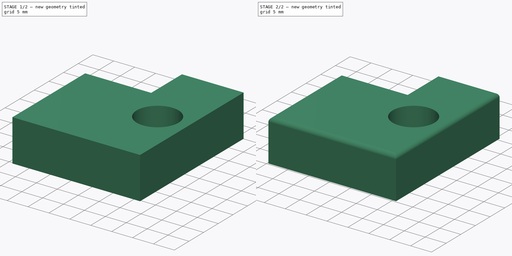
[diagram: build sequence overview — one tinted view per stage of 2, left to right]
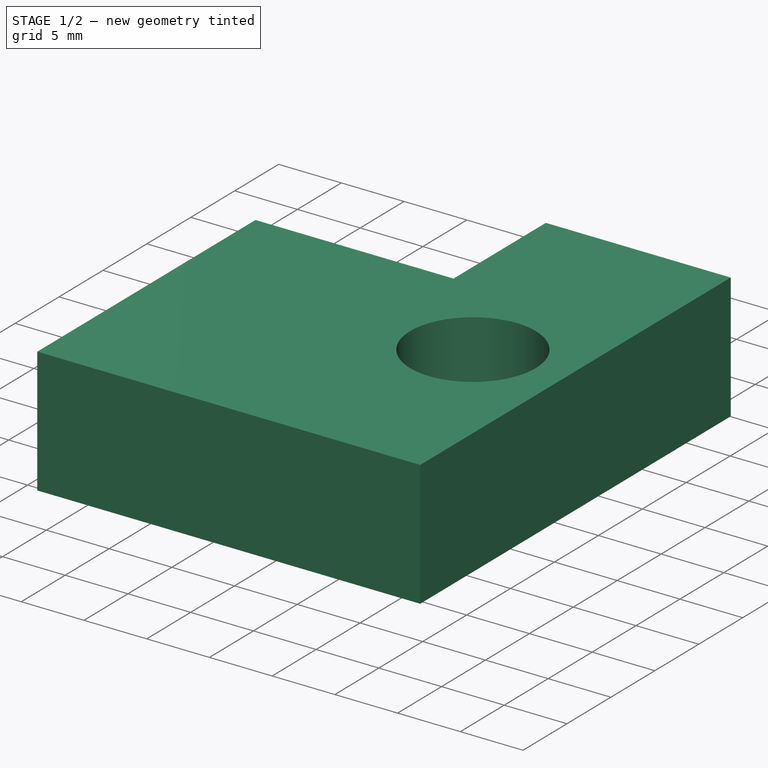
[diagram: stage 1 of 2 — iso view after this stage's code; geometry added in this stage tinted green]
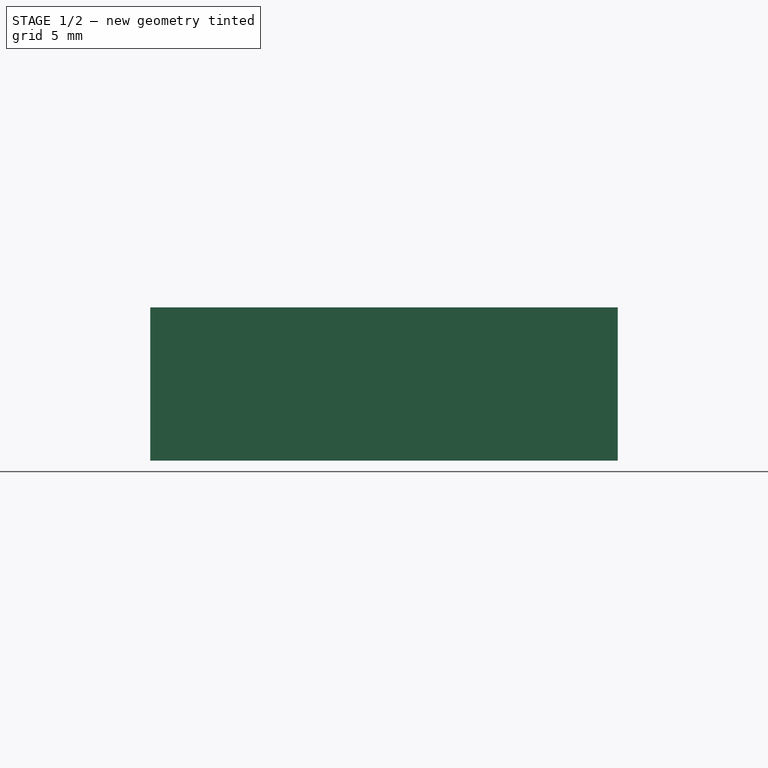
[diagram: stage 1 of 2 — front view after this stage's code; geometry added in this stage tinted green]
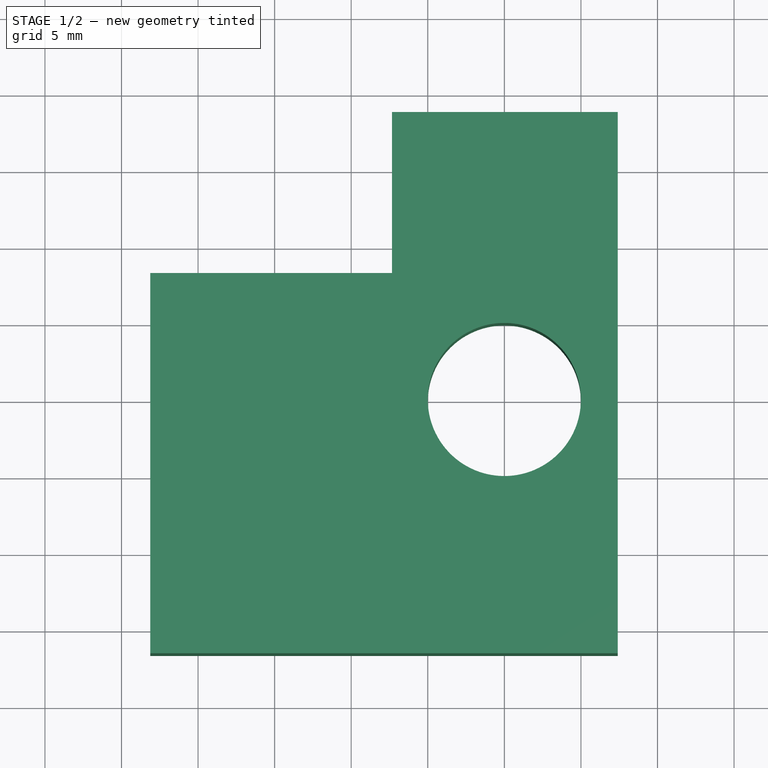
[diagram: stage 1 of 2 — top view after this stage's code; geometry added in this stage tinted green]
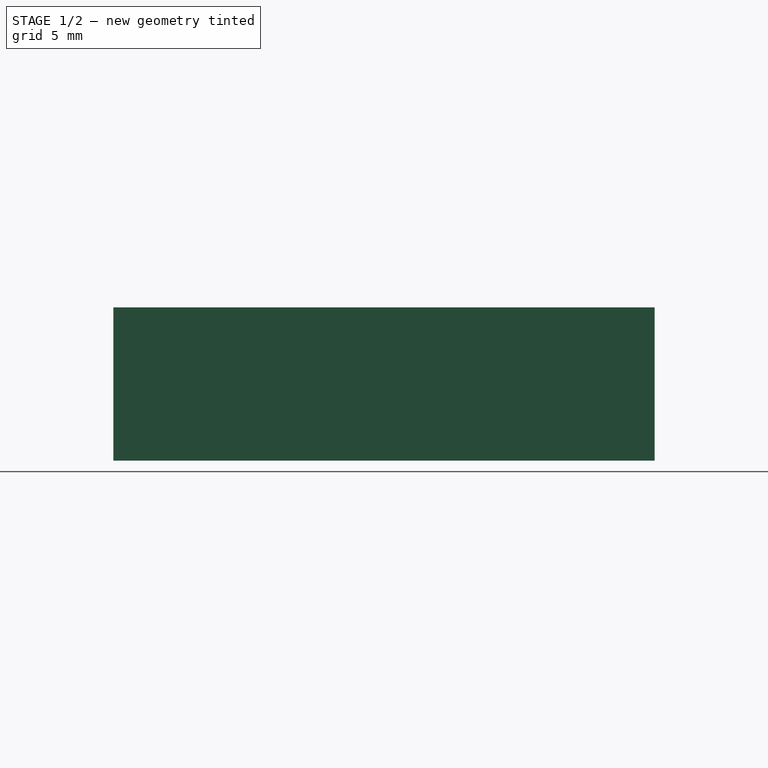
[diagram: stage 1 of 2 — right view after this stage's code; geometry added in this stage tinted green]
FCSTD DOCUMENT  (FreeCAD 0.15R4138 (Git))
Label: test
License: CC-BY 3.0
LicenseURL: http://creativecommons.org/licenses/by/3.0/
objects: Sketcher::SketchObject×2, PartDesign::Pad×1, PartDesign::Pocket×1, Part::FeaturePython×1, Part::Fillet×1
note: 8 computed .brp shape members not serialized (recipe doc carries the construction recipe); baked Part::Feature solids carry a one-line shape summary decoded from their .brp

FEATURE [Sketcher::SketchObject] Sketch
  sketch-geometry (6):
    g0: LineSegment StartX=-13.1192 StartY=-6.5772 StartZ=0 EndX=-13.1192 EndY=18.2606 EndZ=0
    g1: LineSegment StartX=-13.1192 StartY=18.2606 StartZ=0 EndX=2.66771 EndY=18.2606 EndZ=0
    g2: LineSegment StartX=2.66771 StartY=18.2606 StartZ=0 EndX=2.66771 EndY=28.7731 EndZ=0
    g3: LineSegment StartX=2.66771 StartY=28.7731 StartZ=0 EndX=17.4022 EndY=28.7731 EndZ=0
    g4: LineSegment StartX=17.4022 StartY=28.7731 StartZ=0 EndX=17.4022 EndY=-6.5772 EndZ=0
    g5: LineSegment StartX=17.4022 StartY=-6.5772 StartZ=0 EndX=-13.1192 EndY=-6.5772 EndZ=0
  constraints (16):
    c: Vertical(g0)
    c: Coincident(g0,g1)
    c: Horizontal(g1)
    c: Coincident(g1,g2)
    c: Coincident(g2,g3)
    c: Coincident(g3,g4)
    c: Vertical(g4)
    c: Coincident(g4,g5)
    c: Coincident(g5,g0)
    c: Horizontal(g5)
    c: Horizontal(g3)
    c: Vertical(g2)
    c: Distance(g5) = 30.5214
    c: Distance(g4) = 35.3503
    c: Distance(g3) = 14.7345
    c: Distance(g0) = 24.8378
FEATURE [PartDesign::Pad] Pad
  Length = 10
  Length2 = 100
  Sketch = -> Sketch
  Type = 0
FEATURE [Sketcher::SketchObject] Sketch001
  Placement = pos=(0,0,10) rot=(0,0,1;0rad)
  Support = -> Pad [Face8]
  sketch-geometry (1):
    g0: Circle CenterX=10 CenterY=10 CenterZ=0 NormalX=0 NormalY=0 NormalZ=1 Radius=5
  constraints (3):
    c: DistanceX(g-1,g0) = 10
    c: DistanceY(g-1,g0) = 10
    c: Radius(g0) = 5
FEATURE [PartDesign::Pocket] Pocket
  Length = 5
  Sketch = -> Sketch001
  Type = 1
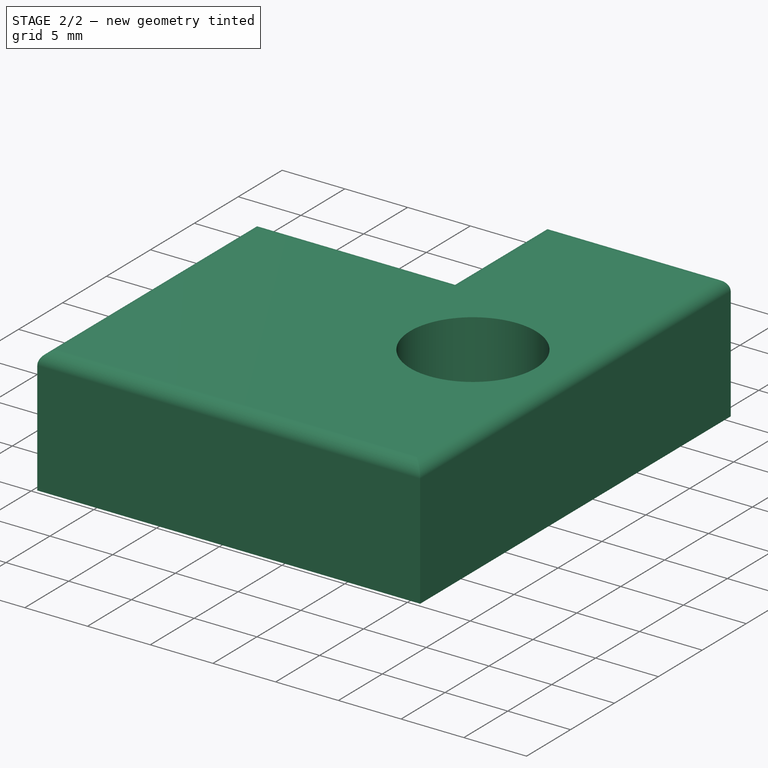
[diagram: stage 2 of 2 — iso view after this stage's code; geometry added in this stage tinted green]
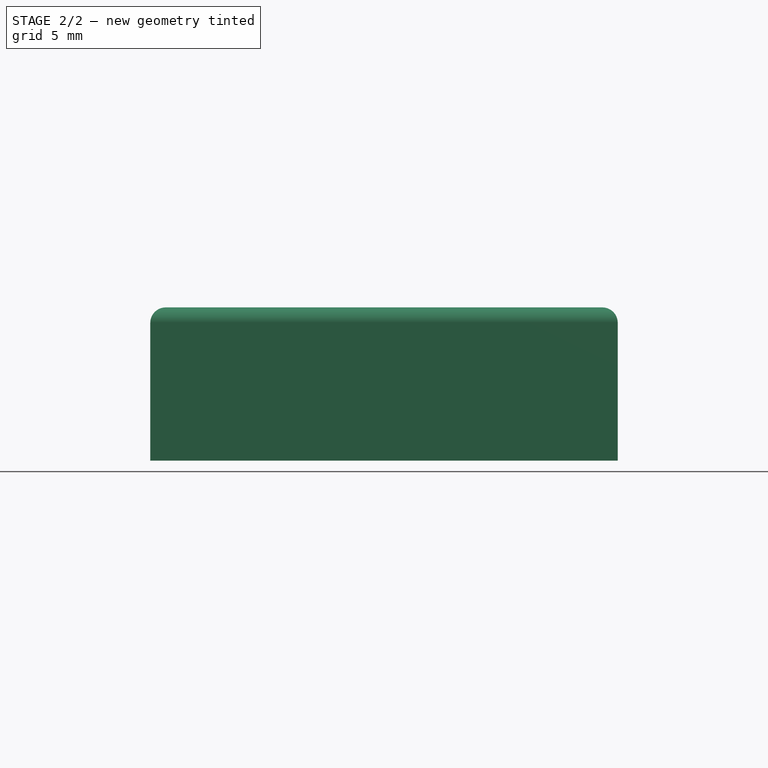
[diagram: stage 2 of 2 — front view after this stage's code; geometry added in this stage tinted green]
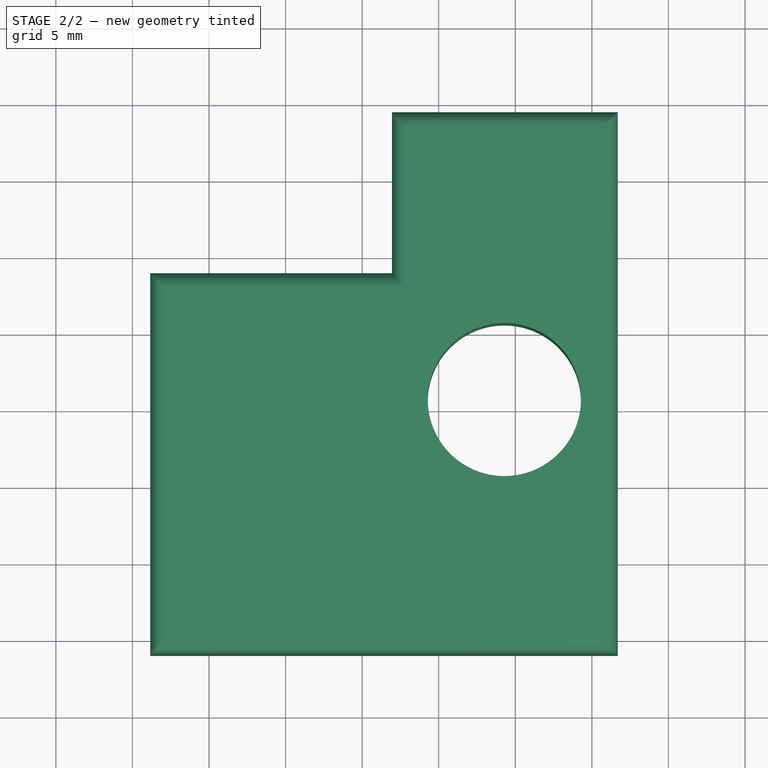
[diagram: stage 2 of 2 — top view after this stage's code; geometry added in this stage tinted green]
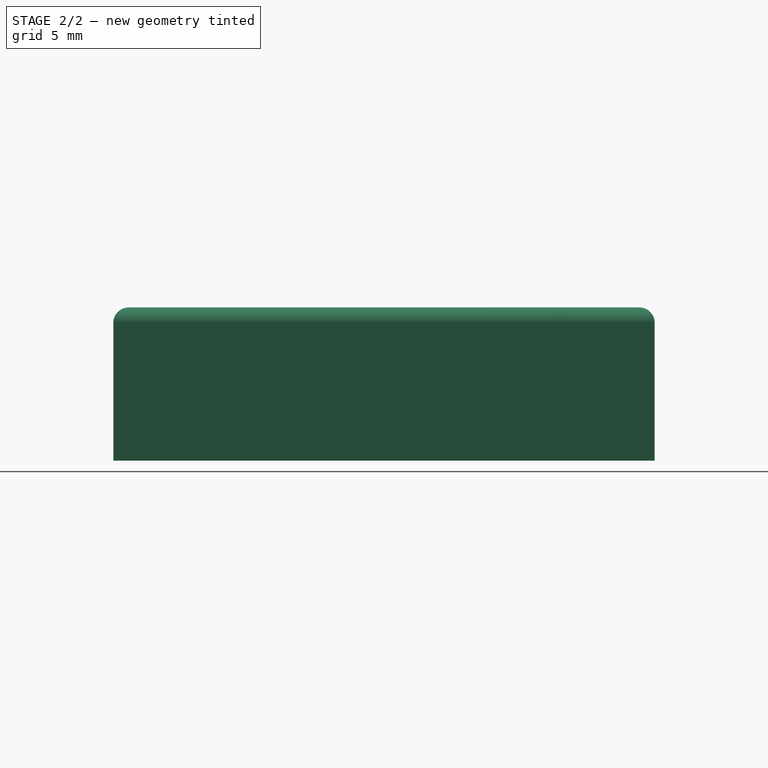
[diagram: stage 2 of 2 — right view after this stage's code; geometry added in this stage tinted green]
FEATURE [Part::FeaturePython] Clone  label="Clone of Pocket"  # Draft clone (typed FeaturePython)
  Objects = -> [Pocket]
  Placement = pos=(34.2861,0.619013,0) rot=(0,0,1;0rad)
  Scale = (1,1,1)
FEATURE [Part::Fillet] Fillet
  Base = -> Clone
  Edges = 6 edges r=1: [Edge4,Edge7,Edge10,Edge15,Edge16,Edge17]
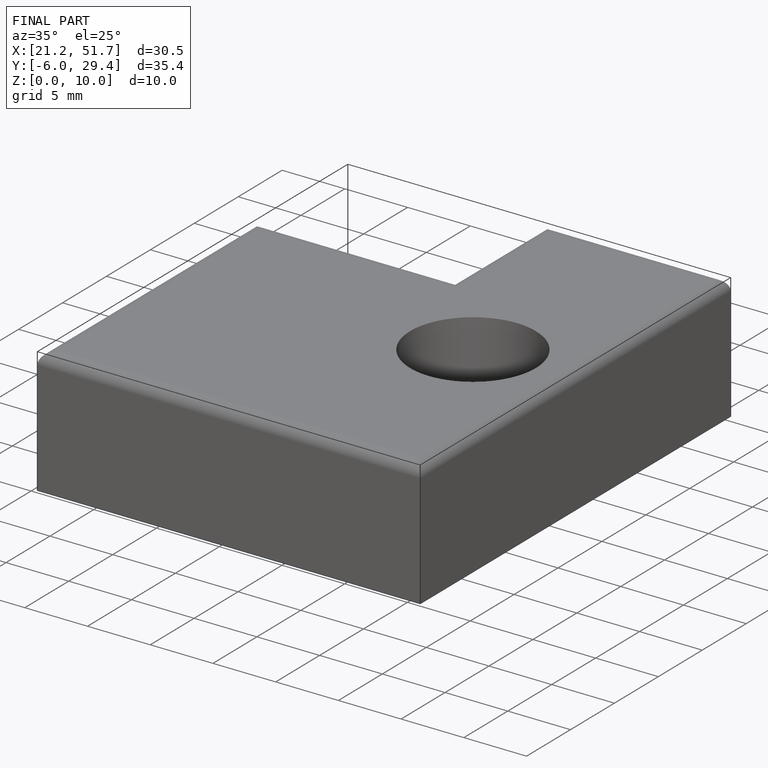
[diagram: finished part — iso view with bounding-box wireframe]
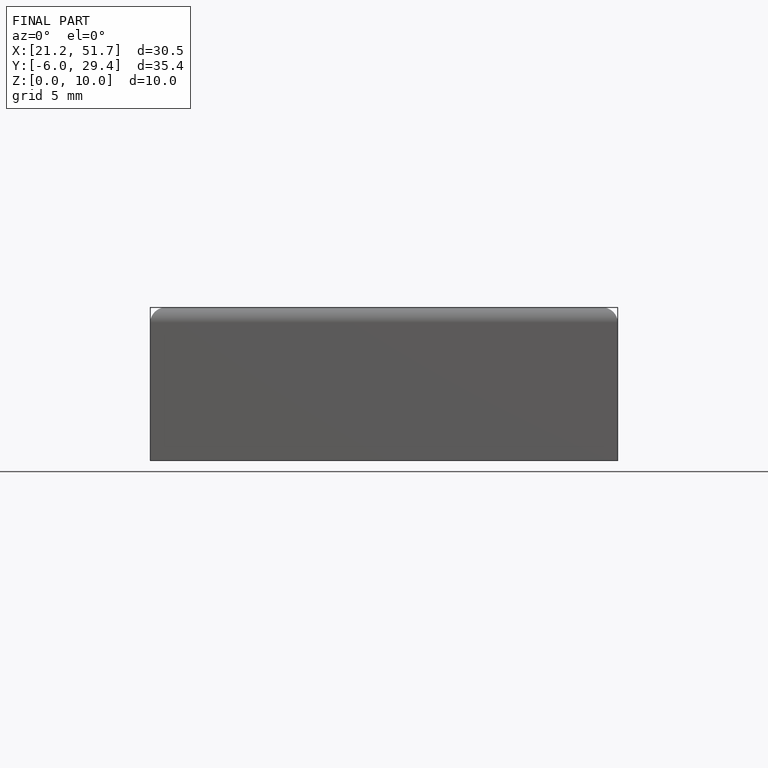
[diagram: finished part — front view with bounding-box wireframe]
